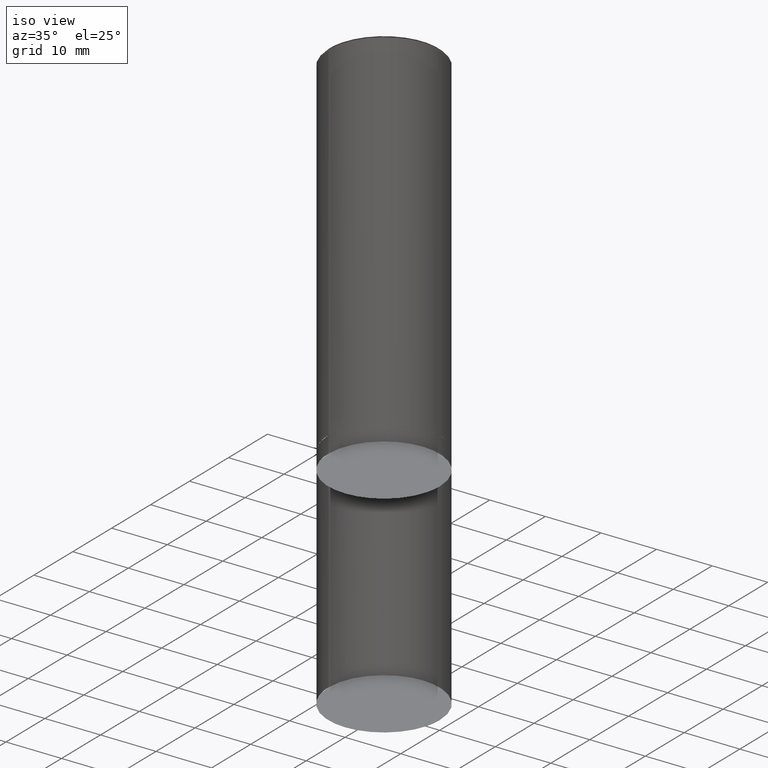
[diagram: clean part render]
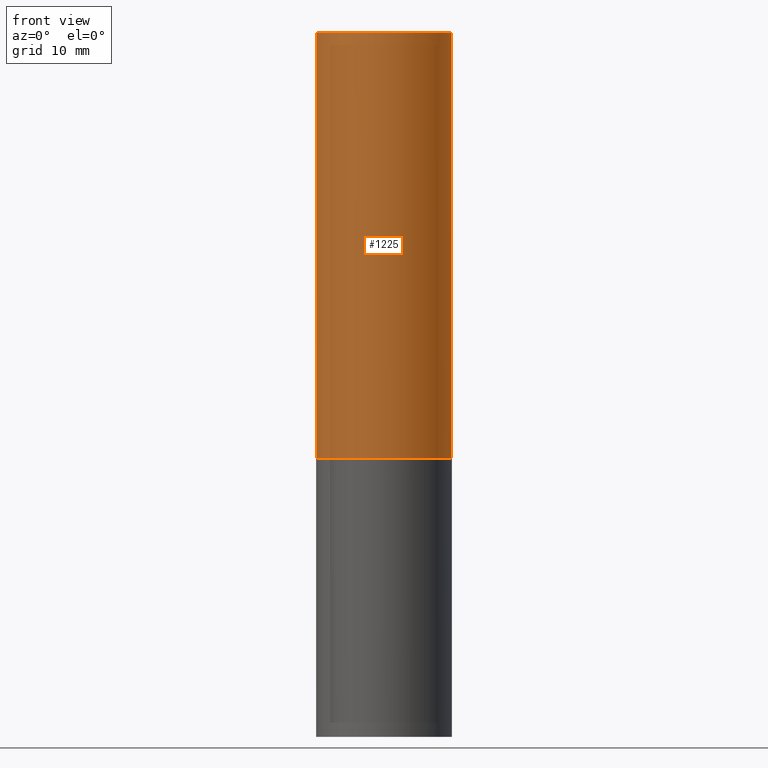
[diagram: tour spotlight — one face highlighted and labeled with its STEP entity id]
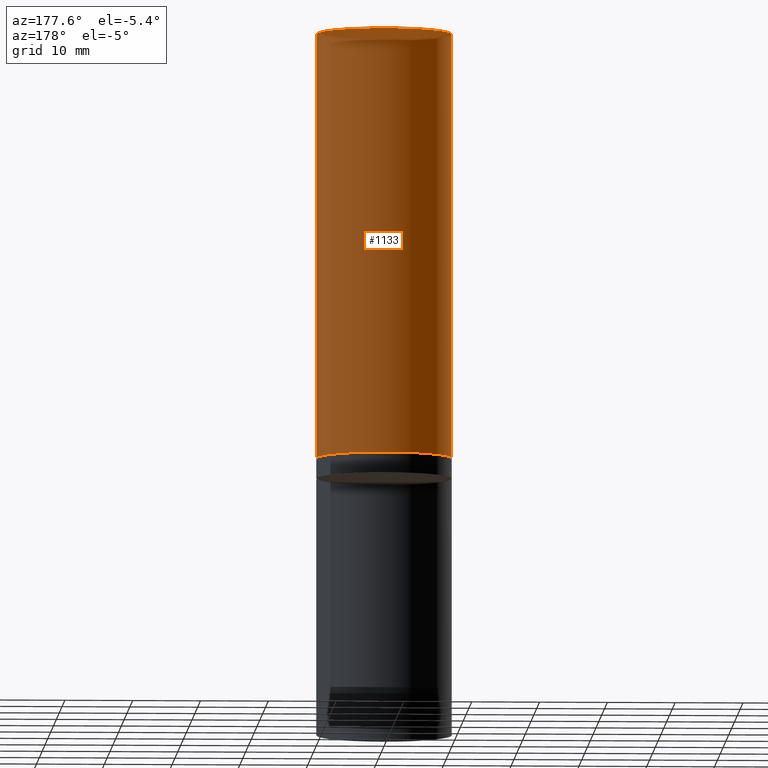
[diagram: tour spotlight — one face highlighted and labeled with its STEP entity id]
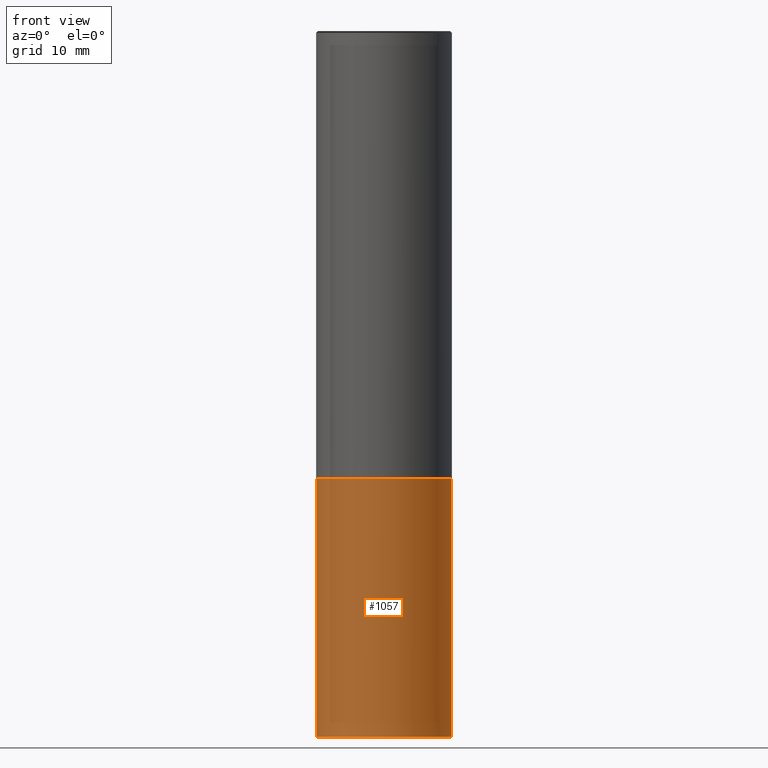
[diagram: tour spotlight — one face highlighted and labeled with its STEP entity id]
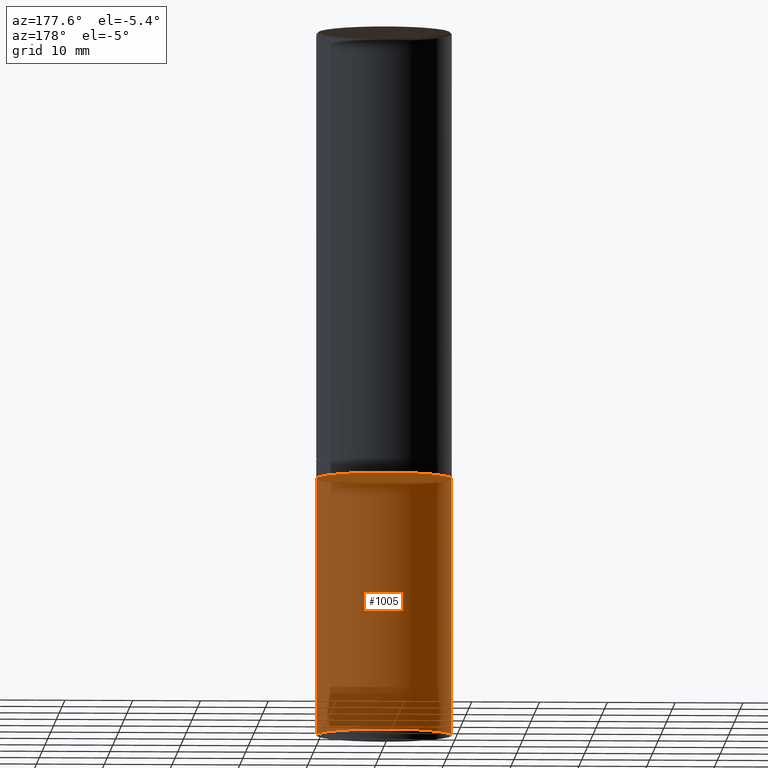
[diagram: tour spotlight — one face highlighted and labeled with its STEP entity id]
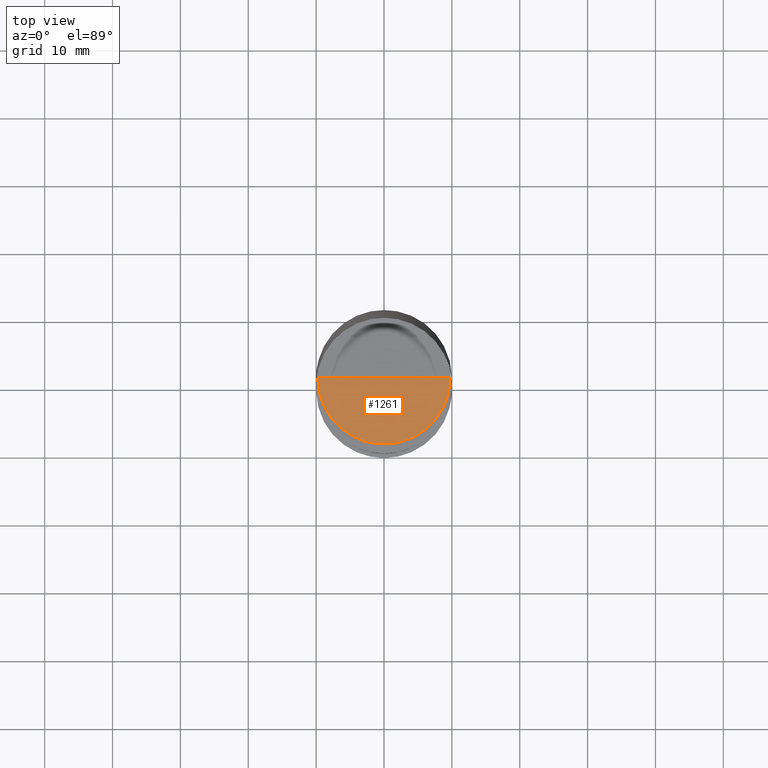
[diagram: tour spotlight — one face highlighted and labeled with its STEP entity id]
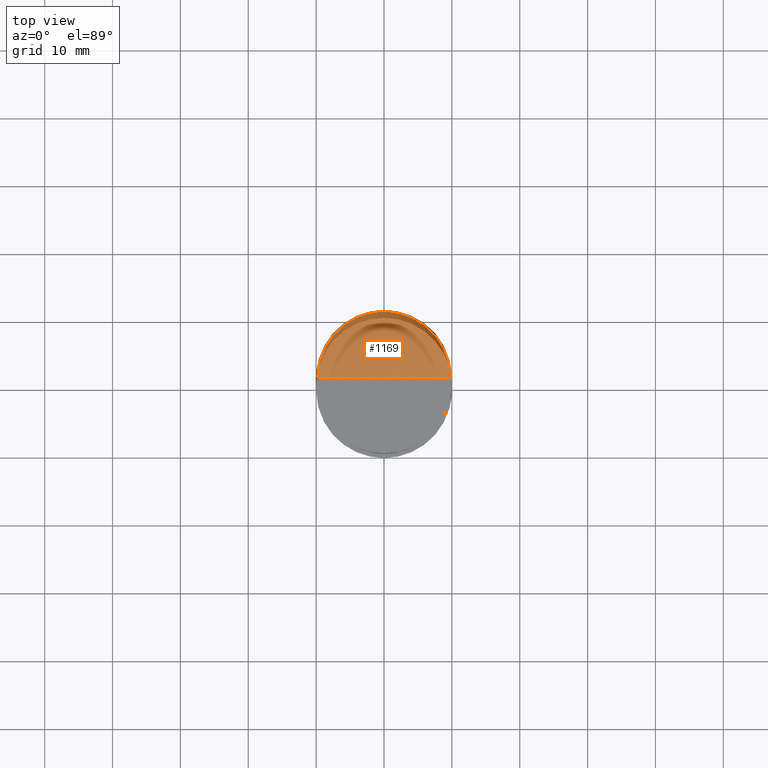
[diagram: tour spotlight — one face highlighted and labeled with its STEP entity id]
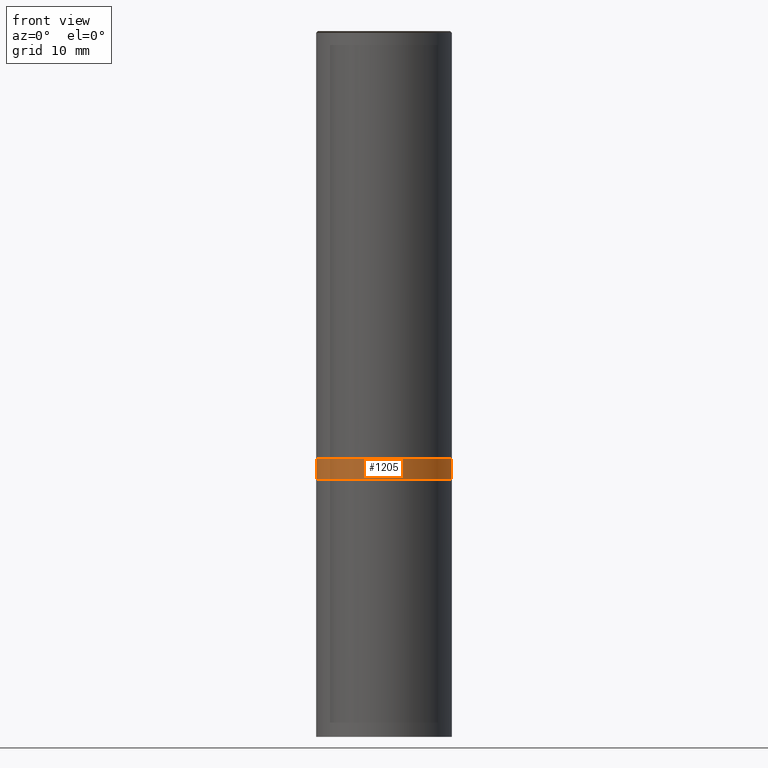
[diagram: tour spotlight — one face highlighted and labeled with its STEP entity id]
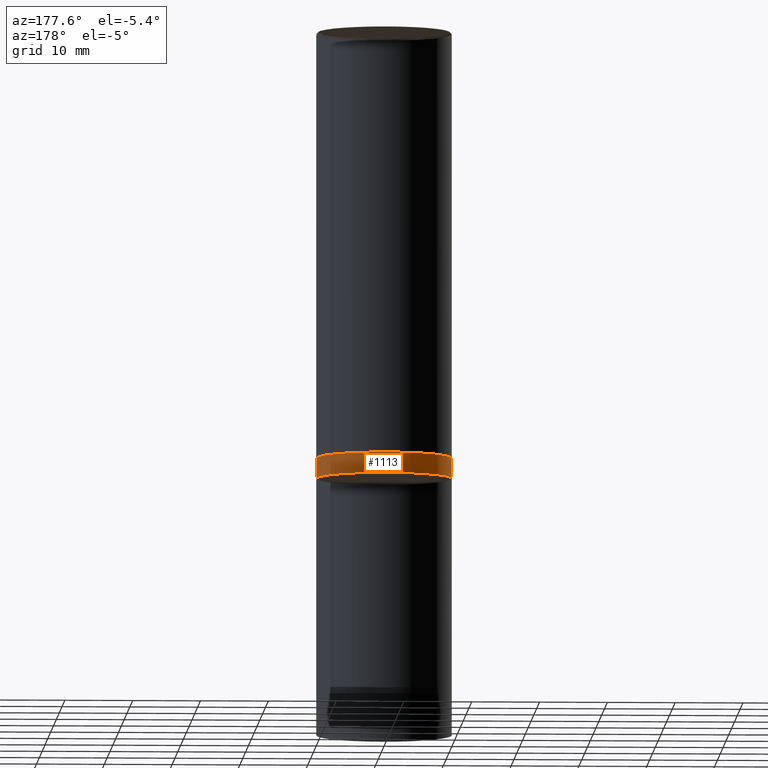
[diagram: tour spotlight — one face highlighted and labeled with its STEP entity id]
A machine part: a face-by-face anatomy tour. The part has 16 B-rep faces; the first image is the clean iso view, then the 8 largest visible faces are spotlighted one at a time (largest first), each with its STEP entity span.

Face 1 — front view, entity #1225. In plain terms, the highlighted face is a freeform B-spline surface patch.
Definition (entity closure, byte-faithful):
#940=CARTESIAN_POINT('',(10.0,0.0,0.0));
#944=CARTESIAN_POINT('',(-10.0,0.0,0.0));
#945=CARTESIAN_POINT('',(10.0,0.0,62.75));
#949=CARTESIAN_POINT('',(-10.0,0.0,62.75));
#956=CARTESIAN_POINT('',(-10.0,-10.0,0.0));
#957=CARTESIAN_POINT('',(0.0,-10.0,0.0));
#958=CARTESIAN_POINT('',(10.0,-10.0,0.0));
#959=CARTESIAN_POINT('',(-10.0,-10.0,62.75));
#960=CARTESIAN_POINT('',(0.0,-10.0,62.75));
#961=CARTESIAN_POINT('',(10.0,-10.0,62.75));
#1206=(
BOUNDED_SURFACE()
B_SPLINE_SURFACE(1,2,(
(#944,#956,#957,#958,#940),
(#949,#959,#960,#961,#945)
), .UNSPECIFIED.,.F.,.F.,.F.)
B_SPLINE_SURFACE_WITH_KNOTS((2,2),(3,2,3),(
0.0,1.0),(
0.0,0.5,1.0), .UNSPECIFIED.)
GEOMETRIC_REPRESENTATION_ITEM()
RATIONAL_B_SPLINE_SURFACE(((1.0,0.707106781187,1.0,0.707106781187,1.0),
(1.0,0.707106781187,1.0,0.707106781187,1.0)
))
REPRESENTATION_ITEM('')
SURFACE()
);
#1207=(
BOUNDED_CURVE()
B_SPLINE_CURVE(2,(#940,#958,#957,#956,#944),.UNSPECIFIED.,.F.,.F.)
B_SPLINE_CURVE_WITH_KNOTS((3,2,3),
(0.0,0.5,1.0),.UNSPECIFIED.)
CURVE()
GEOMETRIC_REPRESENTATION_ITEM()
RATIONAL_B_SPLINE_CURVE((1.0,0.707106781187,1.0,0.707106781187,1.0))
REPRESENTATION_ITEM('')
);
#1208=(
BOUNDED_CURVE()
B_SPLINE_CURVE(1,(#944,#949),.UNSPECIFIED.,.F.,.F.)
B_SPLINE_CURVE_WITH_KNOTS((2,2),
(0.0,1.0),.UNSPECIFIED.)
CURVE()
GEOMETRIC_REPRESENTATION_ITEM()
RATIONAL_B_SPLINE_CURVE((1.0,1.0))
REPRESENTATION_ITEM('')
);
#1209=(
BOUNDED_CURVE()
B_SPLINE_CURVE(2,(#949,#959,#960,#961,#945),.UNSPECIFIED.,.F.,.F.)
B_SPLINE_CURVE_WITH_KNOTS((3,2,3),
(0.0,0.5,1.0),.UNSPECIFIED.)
CURVE()
GEOMETRIC_REPRESENTATION_ITEM()
RATIONAL_B_SPLINE_CURVE((1.0,0.707106781187,1.0,0.707106781187,1.0))
REPRESENTATION_ITEM('')
);
#1210=(
BOUNDED_CURVE()
B_SPLINE_CURVE(1,(#945,#940),.UNSPECIFIED.,.F.,.F.)
B_SPLINE_CURVE_WITH_KNOTS((2,2),
(0.0,1.0),.UNSPECIFIED.)
CURVE()
GEOMETRIC_REPRESENTATION_ITEM()
RATIONAL_B_SPLINE_CURVE((1.0,1.0))
REPRESENTATION_ITEM('')
);
#1211=VERTEX_POINT('',#940);
#1212=VERTEX_POINT('',#944);
#1213=VERTEX_POINT('',#945);
#1214=VERTEX_POINT('',#949);
#1215=EDGE_CURVE('',#1211,#1212,#1207,.T.);
#1216=EDGE_CURVE('',#1212,#1214,#1208,.T.);
#1217=EDGE_CURVE('',#1214,#1213,#1209,.T.);
#1218=EDGE_CURVE('',#1213,#1211,#1210,.T.);
#1219=ORIENTED_EDGE('',*,*,#1215,.T.);
#1220=ORIENTED_EDGE('',*,*,#1216,.T.);
#1221=ORIENTED_EDGE('',*,*,#1217,.T.);
#1222=ORIENTED_EDGE('',*,*,#1218,.T.);
#1223=EDGE_LOOP('',(#1219,#1220,#1221,#1222));
#1224=FACE_OUTER_BOUND('',#1223,.T.);
#1225=ADVANCED_FACE('',(#1224),#1206,.T.);

Face 2 — auxiliary view, entity #1133. In plain terms, the highlighted face is a freeform B-spline surface patch.
Definition (entity closure, byte-faithful):
#940=CARTESIAN_POINT('',(10.0,0.0,0.0));
#941=CARTESIAN_POINT('',(10.0,10.0,0.0));
#942=CARTESIAN_POINT('',(0.0,10.0,0.0));
#943=CARTESIAN_POINT('',(-10.0,10.0,0.0));
#944=CARTESIAN_POINT('',(-10.0,0.0,0.0));
#945=CARTESIAN_POINT('',(10.0,0.0,62.75));
#946=CARTESIAN_POINT('',(10.0,10.0,62.75));
#947=CARTESIAN_POINT('',(0.0,10.0,62.75));
#948=CARTESIAN_POINT('',(-10.0,10.0,62.75));
#949=CARTESIAN_POINT('',(-10.0,0.0,62.75));
#1114=(
BOUNDED_SURFACE()
B_SPLINE_SURFACE(1,2,(
(#940,#941,#942,#943,#944),
(#945,#946,#947,#948,#949)
), .UNSPECIFIED.,.F.,.F.,.F.)
B_SPLINE_SURFACE_WITH_KNOTS((2,2),(3,2,3),(
0.0,1.0),(
0.0,0.5,1.0), .UNSPECIFIED.)
GEOMETRIC_REPRESENTATION_ITEM()
RATIONAL_B_SPLINE_SURFACE(((1.0,0.707106781187,1.0,0.707106781187,1.0),
(1.0,0.707106781187,1.0,0.707106781187,1.0)
))
REPRESENTATION_ITEM('')
SURFACE()
);
#1115=(
BOUNDED_CURVE()
B_SPLINE_CURVE(2,(#944,#943,#942,#941,#940),.UNSPECIFIED.,.F.,.F.)
B_SPLINE_CURVE_WITH_KNOTS((3,2,3),
(0.0,0.5,1.0),.UNSPECIFIED.)
CURVE()
GEOMETRIC_REPRESENTATION_ITEM()
RATIONAL_B_SPLINE_CURVE((1.0,0.707106781187,1.0,0.707106781187,1.0))
REPRESENTATION_ITEM('')
);
#1116=(
BOUNDED_CURVE()
B_SPLINE_CURVE(1,(#940,#945),.UNSPECIFIED.,.F.,.F.)
B_SPLINE_CURVE_WITH_KNOTS((2,2),
(0.0,1.0),.UNSPECIFIED.)
CURVE()
GEOMETRIC_REPRESENTATION_ITEM()
RATIONAL_B_SPLINE_CURVE((1.0,1.0))
REPRESENTATION_ITEM('')
);
#1117=(
BOUNDED_CURVE()
B_SPLINE_CURVE(2,(#945,#946,#947,#948,#949),.UNSPECIFIED.,.F.,.F.)
B_SPLINE_CURVE_WITH_KNOTS((3,2,3),
(0.0,0.5,1.0),.UNSPECIFIED.)
CURVE()
GEOMETRIC_REPRESENTATION_ITEM()
RATIONAL_B_SPLINE_CURVE((1.0,0.707106781187,1.0,0.707106781187,1.0))
REPRESENTATION_ITEM('')
);
#1118=(
BOUNDED_CURVE()
B_SPLINE_CURVE(1,(#949,#944),.UNSPECIFIED.,.F.,.F.)
B_SPLINE_CURVE_WITH_KNOTS((2,2),
(0.0,1.0),.UNSPECIFIED.)
CURVE()
GEOMETRIC_REPRESENTATION_ITEM()
RATIONAL_B_SPLINE_CURVE((1.0,1.0))
REPRESENTATION_ITEM('')
);
#1119=VERTEX_POINT('',#940);
#1120=VERTEX_POINT('',#944);
#1121=VERTEX_POINT('',#945);
#1122=VERTEX_POINT('',#949);
#1123=EDGE_CURVE('',#1120,#1119,#1115,.T.);
#1124=EDGE_CURVE('',#1119,#1121,#1116,.T.);
#1125=EDGE_CURVE('',#1121,#1122,#1117,.T.);
#1126=EDGE_CURVE('',#1122,#1120,#1118,.T.);
#1127=ORIENTED_EDGE('',*,*,#1123,.T.);
#1128=ORIENTED_EDGE('',*,*,#1124,.T.);
#1129=ORIENTED_EDGE('',*,*,#1125,.T.);
#1130=ORIENTED_EDGE('',*,*,#1126,.T.);
#1131=EDGE_LOOP('',(#1127,#1128,#1129,#1130));
#1132=FACE_OUTER_BOUND('',#1131,.T.);
#1133=ADVANCED_FACE('',(#1132),#1114,.T.);

Face 3 — front view, entity #1057. In plain terms, the highlighted face is a freeform B-spline surface patch.
Definition (entity closure, byte-faithful):
#923=CARTESIAN_POINT('',(10.0,0.0,-41.0));
#927=CARTESIAN_POINT('',(-10.0,0.0,-41.0));
#928=CARTESIAN_POINT('',(10.0,0.0,-3.0));
#932=CARTESIAN_POINT('',(-10.0,0.0,-3.0));
#934=CARTESIAN_POINT('',(-10.0,-10.0,-41.0));
#935=CARTESIAN_POINT('',(0.0,-10.0,-41.0));
#936=CARTESIAN_POINT('',(10.0,-10.0,-41.0));
#937=CARTESIAN_POINT('',(-10.0,-10.0,-3.0));
#938=CARTESIAN_POINT('',(0.0,-10.0,-3.0));
#939=CARTESIAN_POINT('',(10.0,-10.0,-3.0));
#1038=(
BOUNDED_SURFACE()
B_SPLINE_SURFACE(1,2,(
(#927,#934,#935,#936,#923),
(#932,#937,#938,#939,#928)
), .UNSPECIFIED.,.F.,.F.,.F.)
B_SPLINE_SURFACE_WITH_KNOTS((2,2),(3,2,3),(
0.0,1.0),(
0.0,0.5,1.0), .UNSPECIFIED.)
GEOMETRIC_REPRESENTATION_ITEM()
RATIONAL_B_SPLINE_SURFACE(((1.0,0.707106781187,1.0,0.707106781187,1.0),
(1.0,0.707106781187,1.0,0.707106781187,1.0)
))
REPRESENTATION_ITEM('')
SURFACE()
);
#1039=(
BOUNDED_CURVE()
B_SPLINE_CURVE(2,(#923,#936,#935,#934,#927),.UNSPECIFIED.,.F.,.F.)
B_SPLINE_CURVE_WITH_KNOTS((3,2,3),
(0.0,0.5,1.0),.UNSPECIFIED.)
CURVE()
GEOMETRIC_REPRESENTATION_ITEM()
RATIONAL_B_SPLINE_CURVE((1.0,0.707106781187,1.0,0.707106781187,1.0))
REPRESENTATION_ITEM('')
);
#1040=(
BOUNDED_CURVE()
B_SPLINE_CURVE(1,(#927,#932),.UNSPECIFIED.,.F.,.F.)
B_SPLINE_CURVE_WITH_KNOTS((2,2),
(0.0,1.0),.UNSPECIFIED.)
CURVE()
GEOMETRIC_REPRESENTATION_ITEM()
RATIONAL_B_SPLINE_CURVE((1.0,1.0))
REPRESENTATION_ITEM('')
);
#1041=(
BOUNDED_CURVE()
B_SPLINE_CURVE(2,(#932,#937,#938,#939,#928),.UNSPECIFIED.,.F.,.F.)
B_SPLINE_CURVE_WITH_KNOTS((3,2,3),
(0.0,0.5,1.0),.UNSPECIFIED.)
CURVE()
GEOMETRIC_REPRESENTATION_ITEM()
RATIONAL_B_SPLINE_CURVE((1.0,0.707106781187,1.0,0.707106781187,1.0))
REPRESENTATION_ITEM('')
);
#1042=(
BOUNDED_CURVE()
B_SPLINE_CURVE(1,(#928,#923),.UNSPECIFIED.,.F.,.F.)
B_SPLINE_CURVE_WITH_KNOTS((2,2),
(0.0,1.0),.UNSPECIFIED.)
CURVE()
GEOMETRIC_REPRESENTATION_ITEM()
RATIONAL_B_SPLINE_CURVE((1.0,1.0))
REPRESENTATION_ITEM('')
);
#1043=VERTEX_POINT('',#923);
#1044=VERTEX_POINT('',#927);
#1045=VERTEX_POINT('',#928);
#1046=VERTEX_POINT('',#932);
#1047=EDGE_CURVE('',#1043,#1044,#1039,.T.);
#1048=EDGE_CURVE('',#1044,#1046,#1040,.T.);
#1049=EDGE_CURVE('',#1046,#1045,#1041,.T.);
#1050=EDGE_CURVE('',#1045,#1043,#1042,.T.);
#1051=ORIENTED_EDGE('',*,*,#1047,.T.);
#1052=ORIENTED_EDGE('',*,*,#1048,.T.);
#1053=ORIENTED_EDGE('',*,*,#1049,.T.);
#1054=ORIENTED_EDGE('',*,*,#1050,.T.);
#1055=EDGE_LOOP('',(#1051,#1052,#1053,#1054));
#1056=FACE_OUTER_BOUND('',#1055,.T.);
#1057=ADVANCED_FACE('',(#1056),#1038,.T.);

Face 4 — auxiliary view, entity #1005. In plain terms, the highlighted face is a freeform B-spline surface patch.
Definition (entity closure, byte-faithful):
#923=CARTESIAN_POINT('',(10.0,0.0,-41.0));
#924=CARTESIAN_POINT('',(10.0,10.0,-41.0));
#925=CARTESIAN_POINT('',(0.0,10.0,-41.0));
#926=CARTESIAN_POINT('',(-10.0,10.0,-41.0));
#927=CARTESIAN_POINT('',(-10.0,0.0,-41.0));
#928=CARTESIAN_POINT('',(10.0,0.0,-3.0));
#929=CARTESIAN_POINT('',(10.0,10.0,-3.0));
#930=CARTESIAN_POINT('',(0.0,10.0,-3.0));
#931=CARTESIAN_POINT('',(-10.0,10.0,-3.0));
#932=CARTESIAN_POINT('',(-10.0,0.0,-3.0));
#986=(
BOUNDED_SURFACE()
B_SPLINE_SURFACE(1,2,(
(#923,#924,#925,#926,#927),
(#928,#929,#930,#931,#932)
), .UNSPECIFIED.,.F.,.F.,.F.)
B_SPLINE_SURFACE_WITH_KNOTS((2,2),(3,2,3),(
0.0,1.0),(
0.0,0.5,1.0), .UNSPECIFIED.)
GEOMETRIC_REPRESENTATION_ITEM()
RATIONAL_B_SPLINE_SURFACE(((1.0,0.707106781187,1.0,0.707106781187,1.0),
(1.0,0.707106781187,1.0,0.707106781187,1.0)
))
REPRESENTATION_ITEM('')
SURFACE()
);
#987=(
BOUNDED_CURVE()
B_SPLINE_CURVE(2,(#927,#926,#925,#924,#923),.UNSPECIFIED.,.F.,.F.)
B_SPLINE_CURVE_WITH_KNOTS((3,2,3),
(0.0,0.5,1.0),.UNSPECIFIED.)
CURVE()
GEOMETRIC_REPRESENTATION_ITEM()
RATIONAL_B_SPLINE_CURVE((1.0,0.707106781187,1.0,0.707106781187,1.0))
REPRESENTATION_ITEM('')
);
#988=(
BOUNDED_CURVE()
B_SPLINE_CURVE(1,(#923,#928),.UNSPECIFIED.,.F.,.F.)
B_SPLINE_CURVE_WITH_KNOTS((2,2),
(0.0,1.0),.UNSPECIFIED.)
CURVE()
GEOMETRIC_REPRESENTATION_ITEM()
RATIONAL_B_SPLINE_CURVE((1.0,1.0))
REPRESENTATION_ITEM('')
);
#989=(
BOUNDED_CURVE()
B_SPLINE_CURVE(2,(#928,#929,#930,#931,#932),.UNSPECIFIED.,.F.,.F.)
B_SPLINE_CURVE_WITH_KNOTS((3,2,3),
(0.0,0.5,1.0),.UNSPECIFIED.)
CURVE()
GEOMETRIC_REPRESENTATION_ITEM()
RATIONAL_B_SPLINE_CURVE((1.0,0.707106781187,1.0,0.707106781187,1.0))
REPRESENTATION_ITEM('')
);
#990=(
BOUNDED_CURVE()
B_SPLINE_CURVE(1,(#932,#927),.UNSPECIFIED.,.F.,.F.)
B_SPLINE_CURVE_WITH_KNOTS((2,2),
(0.0,1.0),.UNSPECIFIED.)
CURVE()
GEOMETRIC_REPRESENTATION_ITEM()
RATIONAL_B_SPLINE_CURVE((1.0,1.0))
REPRESENTATION_ITEM('')
);
#991=VERTEX_POINT('',#923);
#992=VERTEX_POINT('',#927);
#993=VERTEX_POINT('',#928);
#994=VERTEX_POINT('',#932);
#995=EDGE_CURVE('',#992,#991,#987,.T.);
#996=EDGE_CURVE('',#991,#993,#988,.T.);
#997=EDGE_CURVE('',#993,#994,#989,.T.);
#998=EDGE_CURVE('',#994,#992,#990,.T.);
#999=ORIENTED_EDGE('',*,*,#995,.T.);
#1000=ORIENTED_EDGE('',*,*,#996,.T.);
#1001=ORIENTED_EDGE('',*,*,#997,.T.);
#1002=ORIENTED_EDGE('',*,*,#998,.T.);
#1003=EDGE_LOOP('',(#999,#1000,#1001,#1002));
#1004=FACE_OUTER_BOUND('',#1003,.T.);
#1005=ADVANCED_FACE('',(#1004),#986,.T.);

Face 5 — top view, entity #1261. In plain terms, the highlighted face is a freeform B-spline surface patch.
Definition (entity closure, byte-faithful):
#950=CARTESIAN_POINT('',(9.75,0.0,63.0));
#954=CARTESIAN_POINT('',(-9.75,0.0,63.0));
#955=CARTESIAN_POINT('',(0.0,0.0,63.0));
#962=CARTESIAN_POINT('',(-9.75,-9.75,63.0));
#963=CARTESIAN_POINT('',(0.0,-9.75,63.0));
#964=CARTESIAN_POINT('',(9.75,-9.75,63.0));
#1246=(
BOUNDED_SURFACE()
B_SPLINE_SURFACE(1,2,(
(#954,#962,#963,#964,#950),
(#955,#955,#955,#955,#955)
), .UNSPECIFIED.,.F.,.F.,.F.)
B_SPLINE_SURFACE_WITH_KNOTS((2,2),(3,2,3),(
0.0,1.0),(
0.0,0.5,1.0), .UNSPECIFIED.)
GEOMETRIC_REPRESENTATION_ITEM()
RATIONAL_B_SPLINE_SURFACE(((1.0,0.707106781187,1.0,0.707106781187,1.0),
(1.0,0.707106781187,1.0,0.707106781187,1.0)
))
REPRESENTATION_ITEM('')
SURFACE()
);
#1247=(
BOUNDED_CURVE()
B_SPLINE_CURVE(2,(#950,#964,#963,#962,#954),.UNSPECIFIED.,.F.,.F.)
B_SPLINE_CURVE_WITH_KNOTS((3,2,3),
(0.0,0.5,1.0),.UNSPECIFIED.)
CURVE()
GEOMETRIC_REPRESENTATION_ITEM()
RATIONAL_B_SPLINE_CURVE((1.0,0.707106781187,1.0,0.707106781187,1.0))
REPRESENTATION_ITEM('')
);
#1248=(
BOUNDED_CURVE()
B_SPLINE_CURVE(1,(#954,#955),.UNSPECIFIED.,.F.,.F.)
B_SPLINE_CURVE_WITH_KNOTS((2,2),
(0.0,1.0),.UNSPECIFIED.)
CURVE()
GEOMETRIC_REPRESENTATION_ITEM()
RATIONAL_B_SPLINE_CURVE((1.0,1.0))
REPRESENTATION_ITEM('')
);
#1249=(
BOUNDED_CURVE()
B_SPLINE_CURVE(1,(#955,#950),.UNSPECIFIED.,.F.,.F.)
B_SPLINE_CURVE_WITH_KNOTS((2,2),
(0.0,1.0),.UNSPECIFIED.)
CURVE()
GEOMETRIC_REPRESENTATION_ITEM()
RATIONAL_B_SPLINE_CURVE((1.0,1.0))
REPRESENTATION_ITEM('')
);
#1250=VERTEX_POINT('',#950);
#1251=VERTEX_POINT('',#954);
#1252=VERTEX_POINT('',#955);
#1253=EDGE_CURVE('',#1250,#1251,#1247,.T.);
#1254=EDGE_CURVE('',#1251,#1252,#1248,.T.);
#1255=EDGE_CURVE('',#1252,#1250,#1249,.T.);
#1256=ORIENTED_EDGE('',*,*,#1253,.T.);
#1257=ORIENTED_EDGE('',*,*,#1254,.T.);
#1258=ORIENTED_EDGE('',*,*,#1255,.T.);
#1259=EDGE_LOOP('',(#1256,#1257,#1258));
#1260=FACE_OUTER_BOUND('',#1259,.T.);
#1261=ADVANCED_FACE('',(#1260),#1246,.T.);

Face 6 — top view, entity #1169. In plain terms, the highlighted face is a freeform B-spline surface patch.
Definition (entity closure, byte-faithful):
#950=CARTESIAN_POINT('',(9.75,0.0,63.0));
#951=CARTESIAN_POINT('',(9.75,9.75,63.0));
#952=CARTESIAN_POINT('',(0.0,9.75,63.0));
#953=CARTESIAN_POINT('',(-9.75,9.75,63.0));
#954=CARTESIAN_POINT('',(-9.75,0.0,63.0));
#955=CARTESIAN_POINT('',(0.0,0.0,63.0));
#1154=(
BOUNDED_SURFACE()
B_SPLINE_SURFACE(1,2,(
(#950,#951,#952,#953,#954),
(#955,#955,#955,#955,#955)
), .UNSPECIFIED.,.F.,.F.,.F.)
B_SPLINE_SURFACE_WITH_KNOTS((2,2),(3,2,3),(
0.0,1.0),(
0.0,0.5,1.0), .UNSPECIFIED.)
GEOMETRIC_REPRESENTATION_ITEM()
RATIONAL_B_SPLINE_SURFACE(((1.0,0.707106781187,1.0,0.707106781187,1.0),
(1.0,0.707106781187,1.0,0.707106781187,1.0)
))
REPRESENTATION_ITEM('')
SURFACE()
);
#1155=(
BOUNDED_CURVE()
B_SPLINE_CURVE(2,(#954,#953,#952,#951,#950),.UNSPECIFIED.,.F.,.F.)
B_SPLINE_CURVE_WITH_KNOTS((3,2,3),
(0.0,0.5,1.0),.UNSPECIFIED.)
CURVE()
GEOMETRIC_REPRESENTATION_ITEM()
RATIONAL_B_SPLINE_CURVE((1.0,0.707106781187,1.0,0.707106781187,1.0))
REPRESENTATION_ITEM('')
);
#1156=(
BOUNDED_CURVE()
B_SPLINE_CURVE(1,(#950,#955),.UNSPECIFIED.,.F.,.F.)
B_SPLINE_CURVE_WITH_KNOTS((2,2),
(0.0,1.0),.UNSPECIFIED.)
CURVE()
GEOMETRIC_REPRESENTATION_ITEM()
RATIONAL_B_SPLINE_CURVE((1.0,1.0))
REPRESENTATION_ITEM('')
);
#1157=(
BOUNDED_CURVE()
B_SPLINE_CURVE(1,(#955,#954),.UNSPECIFIED.,.F.,.F.)
B_SPLINE_CURVE_WITH_KNOTS((2,2),
(0.0,1.0),.UNSPECIFIED.)
CURVE()
GEOMETRIC_REPRESENTATION_ITEM()
RATIONAL_B_SPLINE_CURVE((1.0,1.0))
REPRESENTATION_ITEM('')
);
#1158=VERTEX_POINT('',#950);
#1159=VERTEX_POINT('',#954);
#1160=VERTEX_POINT('',#955);
#1161=EDGE_CURVE('',#1159,#1158,#1155,.T.);
#1162=EDGE_CURVE('',#1158,#1160,#1156,.T.);
#1163=EDGE_CURVE('',#1160,#1159,#1157,.T.);
#1164=ORIENTED_EDGE('',*,*,#1161,.T.);
#1165=ORIENTED_EDGE('',*,*,#1162,.T.);
#1166=ORIENTED_EDGE('',*,*,#1163,.T.);
#1167=EDGE_LOOP('',(#1164,#1165,#1166));
#1168=FACE_OUTER_BOUND('',#1167,.T.);
#1169=ADVANCED_FACE('',(#1168),#1154,.T.);

Face 7 — front view, entity #1205. In plain terms, the highlighted face is a freeform B-spline surface patch.
Definition (entity closure, byte-faithful):
#928=CARTESIAN_POINT('',(10.0,0.0,-3.0));
#932=CARTESIAN_POINT('',(-10.0,0.0,-3.0));
#937=CARTESIAN_POINT('',(-10.0,-10.0,-3.0));
#938=CARTESIAN_POINT('',(0.0,-10.0,-3.0));
#939=CARTESIAN_POINT('',(10.0,-10.0,-3.0));
#940=CARTESIAN_POINT('',(10.0,0.0,0.0));
#944=CARTESIAN_POINT('',(-10.0,0.0,0.0));
#956=CARTESIAN_POINT('',(-10.0,-10.0,0.0));
#957=CARTESIAN_POINT('',(0.0,-10.0,0.0));
#958=CARTESIAN_POINT('',(10.0,-10.0,0.0));
#1186=(
BOUNDED_SURFACE()
B_SPLINE_SURFACE(1,2,(
(#932,#937,#938,#939,#928),
(#944,#956,#957,#958,#940)
), .UNSPECIFIED.,.F.,.F.,.F.)
B_SPLINE_SURFACE_WITH_KNOTS((2,2),(3,2,3),(
0.0,1.0),(
0.0,0.5,1.0), .UNSPECIFIED.)
GEOMETRIC_REPRESENTATION_ITEM()
RATIONAL_B_SPLINE_SURFACE(((1.0,0.707106781187,1.0,0.707106781187,1.0),
(1.0,0.707106781187,1.0,0.707106781187,1.0)
))
REPRESENTATION_ITEM('')
SURFACE()
);
#1187=(
BOUNDED_CURVE()
B_SPLINE_CURVE(2,(#928,#939,#938,#937,#932),.UNSPECIFIED.,.F.,.F.)
B_SPLINE_CURVE_WITH_KNOTS((3,2,3),
(0.0,0.5,1.0),.UNSPECIFIED.)
CURVE()
GEOMETRIC_REPRESENTATION_ITEM()
RATIONAL_B_SPLINE_CURVE((1.0,0.707106781187,1.0,0.707106781187,1.0))
REPRESENTATION_ITEM('')
);
#1188=(
BOUNDED_CURVE()
B_SPLINE_CURVE(1,(#932,#944),.UNSPECIFIED.,.F.,.F.)
B_SPLINE_CURVE_WITH_KNOTS((2,2),
(0.0,1.0),.UNSPECIFIED.)
CURVE()
GEOMETRIC_REPRESENTATION_ITEM()
RATIONAL_B_SPLINE_CURVE((1.0,1.0))
REPRESENTATION_ITEM('')
);
#1189=(
BOUNDED_CURVE()
B_SPLINE_CURVE(2,(#944,#956,#957,#958,#940),.UNSPECIFIED.,.F.,.F.)
B_SPLINE_CURVE_WITH_KNOTS((3,2,3),
(0.0,0.5,1.0),.UNSPECIFIED.)
CURVE()
GEOMETRIC_REPRESENTATION_ITEM()
RATIONAL_B_SPLINE_CURVE((1.0,0.707106781187,1.0,0.707106781187,1.0))
REPRESENTATION_ITEM('')
);
#1190=(
BOUNDED_CURVE()
B_SPLINE_CURVE(1,(#940,#928),.UNSPECIFIED.,.F.,.F.)
B_SPLINE_CURVE_WITH_KNOTS((2,2),
(0.0,1.0),.UNSPECIFIED.)
CURVE()
GEOMETRIC_REPRESENTATION_ITEM()
RATIONAL_B_SPLINE_CURVE((1.0,1.0))
REPRESENTATION_ITEM('')
);
#1191=VERTEX_POINT('',#928);
#1192=VERTEX_POINT('',#932);
#1193=VERTEX_POINT('',#940);
#1194=VERTEX_POINT('',#944);
#1195=EDGE_CURVE('',#1191,#1192,#1187,.T.);
#1196=EDGE_CURVE('',#1192,#1194,#1188,.T.);
#1197=EDGE_CURVE('',#1194,#1193,#1189,.T.);
#1198=EDGE_CURVE('',#1193,#1191,#1190,.T.);
#1199=ORIENTED_EDGE('',*,*,#1195,.T.);
#1200=ORIENTED_EDGE('',*,*,#1196,.T.);
#1201=ORIENTED_EDGE('',*,*,#1197,.T.);
#1202=ORIENTED_EDGE('',*,*,#1198,.T.);
#1203=EDGE_LOOP('',(#1199,#1200,#1201,#1202));
#1204=FACE_OUTER_BOUND('',#1203,.T.);
#1205=ADVANCED_FACE('',(#1204),#1186,.T.);

Face 8 — auxiliary view, entity #1113. In plain terms, the highlighted face is a freeform B-spline surface patch.
Definition (entity closure, byte-faithful):
#928=CARTESIAN_POINT('',(10.0,0.0,-3.0));
#929=CARTESIAN_POINT('',(10.0,10.0,-3.0));
#930=CARTESIAN_POINT('',(0.0,10.0,-3.0));
#931=CARTESIAN_POINT('',(-10.0,10.0,-3.0));
#932=CARTESIAN_POINT('',(-10.0,0.0,-3.0));
#940=CARTESIAN_POINT('',(10.0,0.0,0.0));
#941=CARTESIAN_POINT('',(10.0,10.0,0.0));
#942=CARTESIAN_POINT('',(0.0,10.0,0.0));
#943=CARTESIAN_POINT('',(-10.0,10.0,0.0));
#944=CARTESIAN_POINT('',(-10.0,0.0,0.0));
#1094=(
BOUNDED_SURFACE()
B_SPLINE_SURFACE(1,2,(
(#928,#929,#930,#931,#932),
(#940,#941,#942,#943,#944)
), .UNSPECIFIED.,.F.,.F.,.F.)
B_SPLINE_SURFACE_WITH_KNOTS((2,2),(3,2,3),(
0.0,1.0),(
0.0,0.5,1.0), .UNSPECIFIED.)
GEOMETRIC_REPRESENTATION_ITEM()
RATIONAL_B_SPLINE_SURFACE(((1.0,0.707106781187,1.0,0.707106781187,1.0),
(1.0,0.707106781187,1.0,0.707106781187,1.0)
))
REPRESENTATION_ITEM('')
SURFACE()
);
#1095=(
BOUNDED_CURVE()
B_SPLINE_CURVE(2,(#932,#931,#930,#929,#928),.UNSPECIFIED.,.F.,.F.)
B_SPLINE_CURVE_WITH_KNOTS((3,2,3),
(0.0,0.5,1.0),.UNSPECIFIED.)
CURVE()
GEOMETRIC_REPRESENTATION_ITEM()
RATIONAL_B_SPLINE_CURVE((1.0,0.707106781187,1.0,0.707106781187,1.0))
REPRESENTATION_ITEM('')
);
#1096=(
BOUNDED_CURVE()
B_SPLINE_CURVE(1,(#928,#940),.UNSPECIFIED.,.F.,.F.)
B_SPLINE_CURVE_WITH_KNOTS((2,2),
(0.0,1.0),.UNSPECIFIED.)
CURVE()
GEOMETRIC_REPRESENTATION_ITEM()
RATIONAL_B_SPLINE_CURVE((1.0,1.0))
REPRESENTATION_ITEM('')
);
#1097=(
BOUNDED_CURVE()
B_SPLINE_CURVE(2,(#940,#941,#942,#943,#944),.UNSPECIFIED.,.F.,.F.)
B_SPLINE_CURVE_WITH_KNOTS((3,2,3),
(0.0,0.5,1.0),.UNSPECIFIED.)
CURVE()
GEOMETRIC_REPRESENTATION_ITEM()
RATIONAL_B_SPLINE_CURVE((1.0,0.707106781187,1.0,0.707106781187,1.0))
REPRESENTATION_ITEM('')
);
#1098=(
BOUNDED_CURVE()
B_SPLINE_CURVE(1,(#944,#932),.UNSPECIFIED.,.F.,.F.)
B_SPLINE_CURVE_WITH_KNOTS((2,2),
(0.0,1.0),.UNSPECIFIED.)
CURVE()
GEOMETRIC_REPRESENTATION_ITEM()
RATIONAL_B_SPLINE_CURVE((1.0,1.0))
REPRESENTATION_ITEM('')
);
#1099=VERTEX_POINT('',#928);
#1100=VERTEX_POINT('',#932);
#1101=VERTEX_POINT('',#940);
#1102=VERTEX_POINT('',#944);
#1103=EDGE_CURVE('',#1100,#1099,#1095,.T.);
#1104=EDGE_CURVE('',#1099,#1101,#1096,.T.);
#1105=EDGE_CURVE('',#1101,#1102,#1097,.T.);
#1106=EDGE_CURVE('',#1102,#1100,#1098,.T.);
#1107=ORIENTED_EDGE('',*,*,#1103,.T.);
#1108=ORIENTED_EDGE('',*,*,#1104,.T.);
#1109=ORIENTED_EDGE('',*,*,#1105,.T.);
#1110=ORIENTED_EDGE('',*,*,#1106,.T.);
#1111=EDGE_LOOP('',(#1107,#1108,#1109,#1110));
#1112=FACE_OUTER_BOUND('',#1111,.T.);
#1113=ADVANCED_FACE('',(#1112),#1094,.T.);